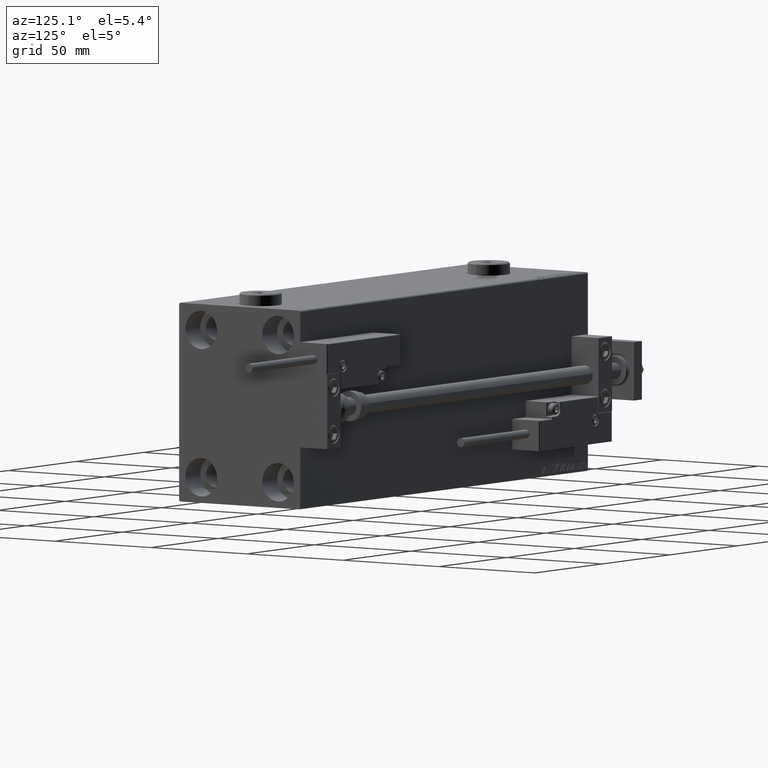
[diagram: clean part render]
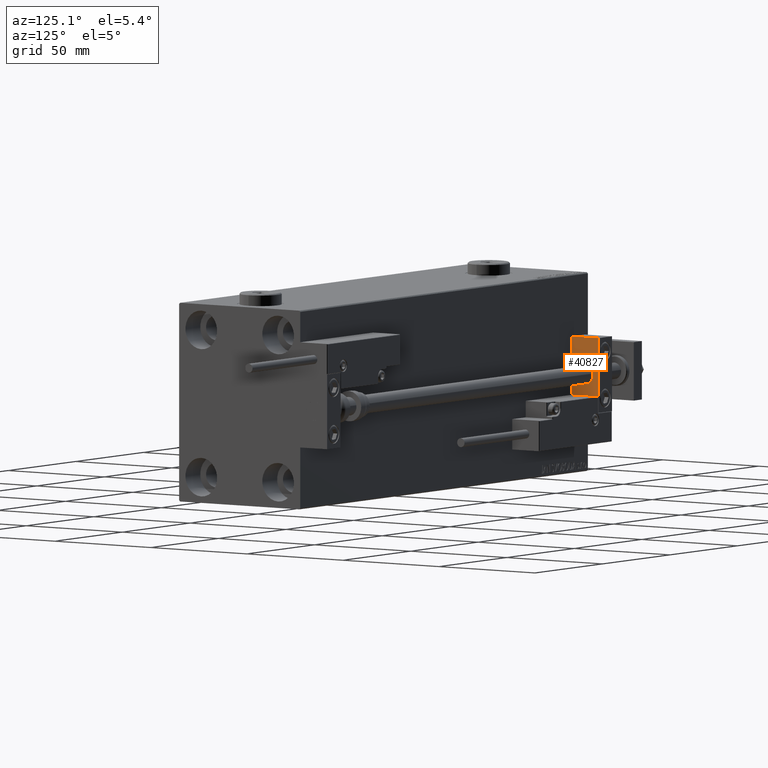
[diagram: same view with one face highlighted and labeled with its STEP entity id]
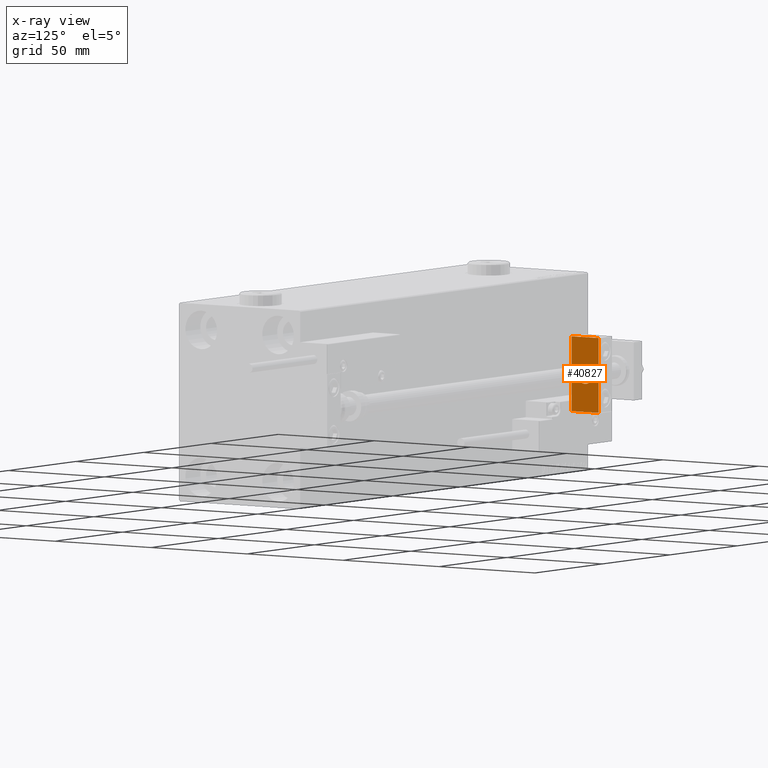
[diagram: x-ray of the same camera — body ghosted, the highlighted face saturated]
A machine part, auxiliary view. The second image highlights one B-rep face of the part: STEP entity #40827.
The next image is the same camera in x-ray: the body ghosted, the highlighted face saturated — about 0% of this face is hidden behind the body in this view.
In plain terms, the highlighted planar face has unit normal (1, 0, -0).
Its self-contained STEP definition (entity closure, byte-faithful):
#627 = VERTEX_POINT ( 'NONE', #50397 ) ;
#1850 = AXIS2_PLACEMENT_3D ( 'NONE', #41370, #28895, #25491 ) ;
#1934 = EDGE_CURVE ( 'NONE', #32418, #34637, #27523, .T. ) ;
#2031 = VERTEX_POINT ( 'NONE', #24389 ) ;
#2177 = EDGE_CURVE ( 'NONE', #627, #2338, #22591, .T. ) ;
#2338 = VERTEX_POINT ( 'NONE', #28149 ) ;
#2902 = LINE ( 'NONE', #10742, #9672 ) ;
#3004 = ORIENTED_EDGE ( 'NONE', *, *, #1934, .F. ) ;
#3013 = ORIENTED_EDGE ( 'NONE', *, *, #2177, .F. ) ;
#4572 = AXIS2_PLACEMENT_3D ( 'NONE', #21244, #8762, #48106 ) ;
#6051 = DIRECTION ( 'NONE',  ( 0.000000000000000000, 0.000000000000000000, -1.000000000000000000 ) ) ;
#6393 = DIRECTION ( 'NONE',  ( 0.000000000000000000, 0.000000000000000000, 1.000000000000000000 ) ) ;
#7297 = EDGE_LOOP ( 'NONE', ( #3013, #11940 ) ) ;
#8762 = DIRECTION ( 'NONE',  ( -1.000000000000000000, 0.000000000000000000, -0.000000000000000000 ) ) ;
#9672 = VECTOR ( 'NONE', #6051, 1000.000000000000000 ) ;
#10742 = CARTESIAN_POINT ( 'NONE',  ( 0.000000000000000000, -7.000000000000000000, 15.99999999999999289 ) ) ;
#10935 = AXIS2_PLACEMENT_3D ( 'NONE', #49643, #42082, #6393 ) ;
#11940 = ORIENTED_EDGE ( 'NONE', *, *, #30951, .F. ) ;
#12511 = CARTESIAN_POINT ( 'NONE',  ( 0.000000000000000000, 7.000000000000000000, 15.99999999999999289 ) ) ;
#13103 = EDGE_LOOP ( 'NONE', ( #15097, #3004, #16030, #24279 ) ) ;
#13737 = DIRECTION ( 'NONE',  ( 0.000000000000000000, -1.000000000000000000, 0.000000000000000000 ) ) ;
#15097 = ORIENTED_EDGE ( 'NONE', *, *, #43965, .F. ) ;
#16030 = ORIENTED_EDGE ( 'NONE', *, *, #32707, .T. ) ;
#18458 = VECTOR ( 'NONE', #35328, 1000.000000000000000 ) ;
#20744 = FACE_BOUND ( 'NONE', #7297, .T. ) ;
#21244 = CARTESIAN_POINT ( 'NONE',  ( 0.000000000000000000, 0.000000000000000000, 0.000000000000000000 ) ) ;
#21979 = LINE ( 'NONE', #22240, #23384 ) ;
#22240 = CARTESIAN_POINT ( 'NONE',  ( 0.000000000000000000, 7.000000000000000000, 15.99999999999999289 ) ) ;
#22591 = CIRCLE ( 'NONE', #10935, 4.000000000000000000 ) ;
#22683 = CARTESIAN_POINT ( 'NONE',  ( 0.000000000000000000, 7.000000000000000000, -16.00000000000000711 ) ) ;
#23384 = VECTOR ( 'NONE', #30564, 1000.000000000000000 ) ;
#24279 = ORIENTED_EDGE ( 'NONE', *, *, #48602, .T. ) ;
#24389 = CARTESIAN_POINT ( 'NONE',  ( 0.000000000000000000, -7.000000000000000000, -16.00000000000000711 ) ) ;
#25491 = DIRECTION ( 'NONE',  ( 0.000000000000000000, 0.000000000000000000, 1.000000000000000000 ) ) ;
#27523 = LINE ( 'NONE', #47081, #18458 ) ;
#27629 = CIRCLE ( 'NONE', #1850, 4.000000000000000000 ) ;
#28149 = CARTESIAN_POINT ( 'NONE',  ( 0.000000000000000000, 4.898587196589412829E-16, -4.000000000000000000 ) ) ;
#28813 = PLANE ( 'NONE',  #4572 ) ;
#28895 = DIRECTION ( 'NONE',  ( -1.000000000000000000, -0.000000000000000000, -0.000000000000000000 ) ) ;
#30564 = DIRECTION ( 'NONE',  ( 0.000000000000000000, 0.000000000000000000, -1.000000000000000000 ) ) ;
#30951 = EDGE_CURVE ( 'NONE', #2338, #627, #27629, .T. ) ;
#32418 = VERTEX_POINT ( 'NONE', #12511 ) ;
#32707 = EDGE_CURVE ( 'NONE', #32418, #49127, #21979, .T. ) ;
#33933 = CARTESIAN_POINT ( 'NONE',  ( 0.000000000000000000, -7.000000000000000000, 15.99999999999999289 ) ) ;
#34637 = VERTEX_POINT ( 'NONE', #33933 ) ;
#34981 = LINE ( 'NONE', #42803, #46295 ) ;
#35328 = DIRECTION ( 'NONE',  ( 0.000000000000000000, -1.000000000000000000, 0.000000000000000000 ) ) ;
#37126 = FACE_OUTER_BOUND ( 'NONE', #13103, .T. ) ;
#40827 = ADVANCED_FACE ( 'NONE', ( #20744, #37126 ), #28813, .T. ) ;
#41370 = CARTESIAN_POINT ( 'NONE',  ( 0.000000000000000000, 0.000000000000000000, 0.000000000000000000 ) ) ;
#42082 = DIRECTION ( 'NONE',  ( -1.000000000000000000, -0.000000000000000000, -0.000000000000000000 ) ) ;
#42803 = CARTESIAN_POINT ( 'NONE',  ( 0.000000000000000000, 7.000000000000000000, -16.00000000000000711 ) ) ;
#43965 = EDGE_CURVE ( 'NONE', #34637, #2031, #2902, .T. ) ;
#46295 = VECTOR ( 'NONE', #13737, 1000.000000000000000 ) ;
#47081 = CARTESIAN_POINT ( 'NONE',  ( 0.000000000000000000, 7.000000000000000000, 15.99999999999999289 ) ) ;
#48106 = DIRECTION ( 'NONE',  ( -0.000000000000000000, 0.000000000000000000, 1.000000000000000000 ) ) ;
#48602 = EDGE_CURVE ( 'NONE', #49127, #2031, #34981, .T. ) ;
#49127 = VERTEX_POINT ( 'NONE', #22683 ) ;
#49643 = CARTESIAN_POINT ( 'NONE',  ( 0.000000000000000000, 0.000000000000000000, 0.000000000000000000 ) ) ;
#50397 = CARTESIAN_POINT ( 'NONE',  ( 0.000000000000000000, 0.000000000000000000, 4.000000000000000000 ) ) ;